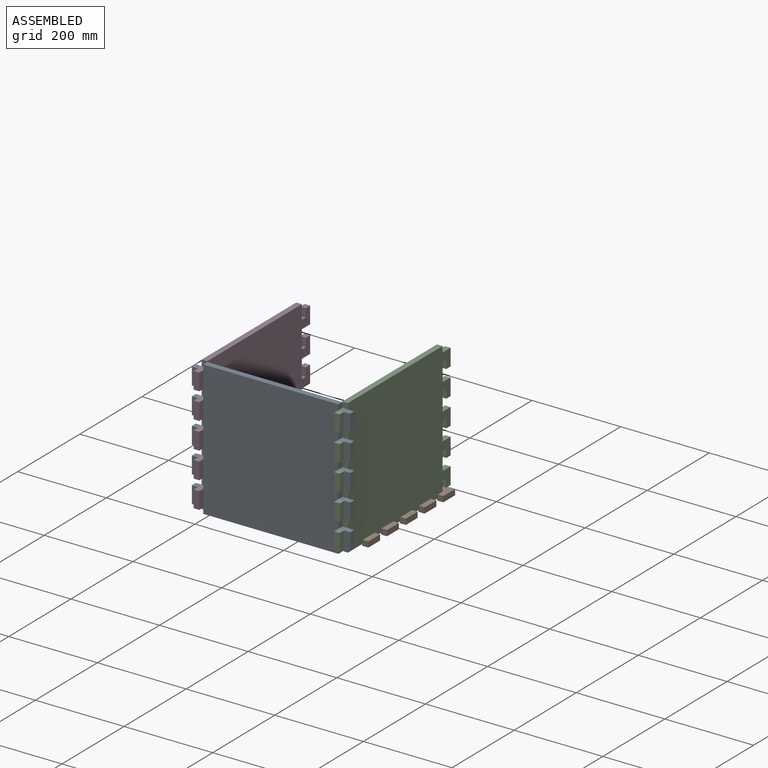
[diagram: assembled view]
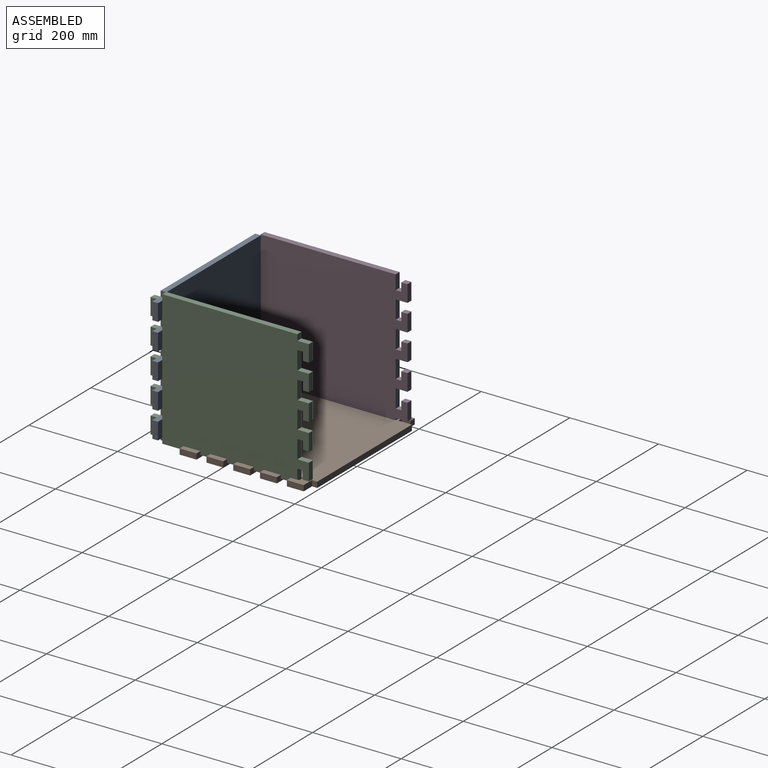
[diagram: assembled view, second angle]
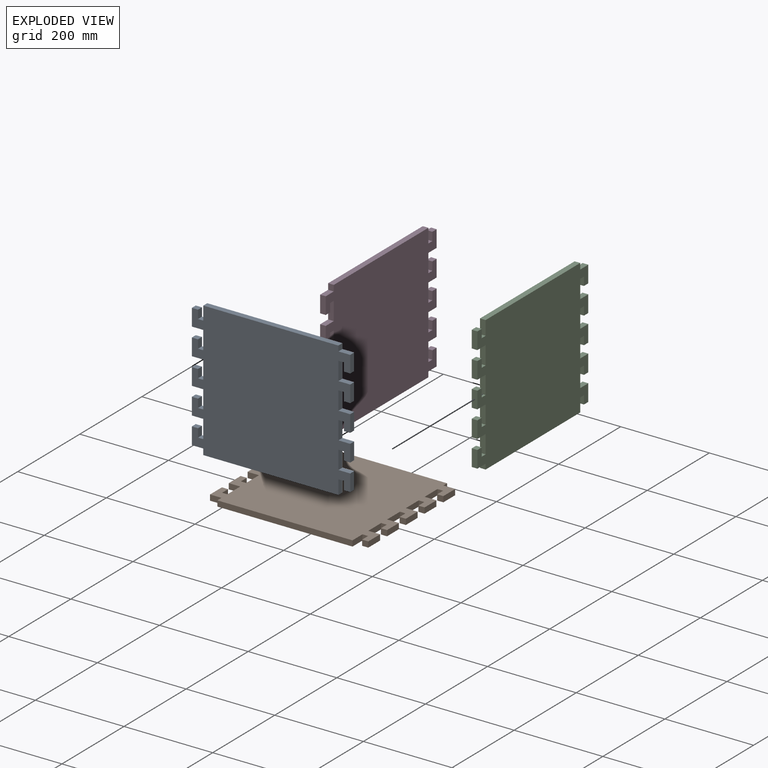
[diagram: exploded view]
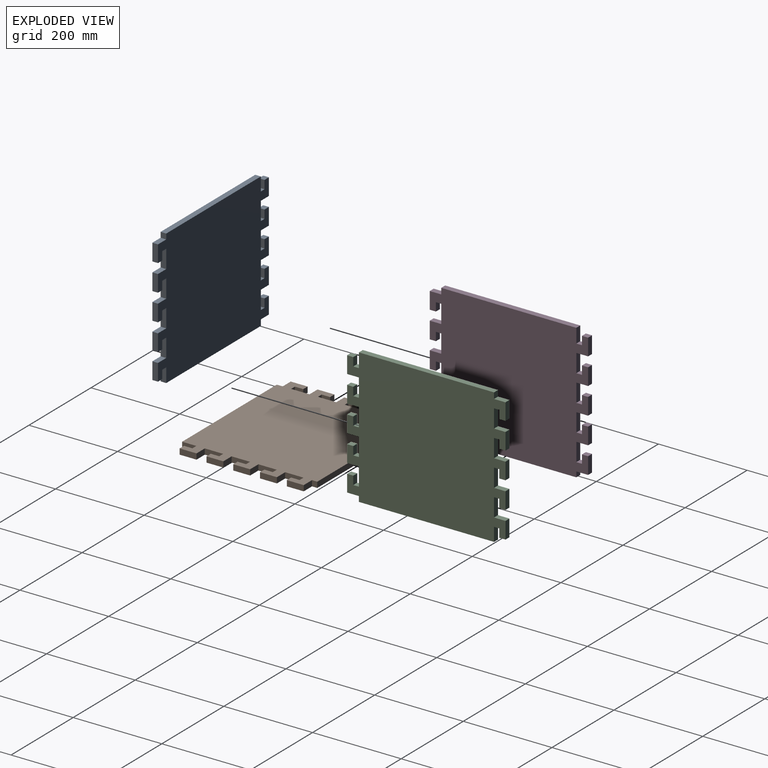
[diagram: exploded view, second angle]
ASSEMBLY  parts=4 mates=2
PART A: 66 faces, bbox 357.3x304.8x12.7 mm
  f0: plane 41.39x12.7mm, normal (-1,0,0), area 525.6mm2, adj f1,f63,f64,f65
  f1: plane 12.7x11.93mm, normal (0,1,0), area 151.6mm2, adj f0,f2,f64,f65
  f2: plane 19.05x12.7mm, normal (1,0,0), area 241.9mm2, adj f1,f3,f64,f65
  f3: plane 13.91x12.7mm, normal (0,1,0), area 176.7mm2, adj f2,f4,f64,f65
  f4: plane 38.1x12.7mm, normal (-1,0,0), area 483.9mm2, adj f3,f5,f64,f65
  f5: plane 25.85x12.7mm, normal (0,-1,0), area 328.3mm2, adj f4,f6,f64,f65
  f6: plane 41.39x12.7mm, normal (-1,0,0), area 525.6mm2, adj f5,f7,f64,f65
  f7: plane 12.7x11.93mm, normal (0,1,0), area 151.6mm2, adj f6,f8,f64,f65
  f8: plane 19.05x12.7mm, normal (1,0,0), area 241.9mm2, adj f7,f9,f64,f65
  f9: plane 13.91x12.7mm, normal (0,1,0), area 176.7mm2, adj f8,f10,f64,f65
  f10: plane 38.1x12.7mm, normal (-1,0,0), area 483.9mm2, adj f9,f11,f64,f65
  f11: plane 25.85x12.7mm, normal (0,-1,0), area 328.3mm2, adj f10,f12,f64,f65
  f12: plane 13.39x12.7mm, normal (-1,0,0), area 170mm2, adj f11,f13,f64,f65
  f13: plane 304.8x12.7mm, normal (0,-1,0), area 3871mm2, adj f12,f14,f64,f65
  f14: plane 32.05x12.7mm, normal (1,0,0), area 407.1mm2, adj f13,f15,f64,f65
  f15: plane 12.7x12.7mm, normal (0,-1,0), area 161.3mm2, adj f14,f16,f64,f65
  f16: plane 19.05x12.7mm, normal (-1,0,0), area 241.9mm2, adj f15,f17,f64,f65
  f17: plane 13.91x12.7mm, normal (0,-1,0), area 176.7mm2, adj f16,f18,f64,f65
  f18: plane 38.1x12.7mm, normal (1,0,0), area 483.9mm2, adj f17,f19,f64,f65
  f19: plane 26.61x12.7mm, normal (0,1,0), area 338mm2, adj f18,f20,f64,f65
  f20: plane 41.39x12.7mm, normal (1,0,0), area 525.6mm2, adj f19,f21,f64,f65
  f21: plane 12.7x12.7mm, normal (0,-1,0), area 161.3mm2, adj f20,f22,f64,f65
  f22: plane 19.05x12.7mm, normal (-1,0,0), area 241.9mm2, adj f21,f23,f64,f65
  f23: plane 13.91x12.7mm, normal (0,-1,0), area 176.7mm2, adj f22,f24,f64,f65
  f24: plane 38.1x12.7mm, normal (1,0,0), area 483.9mm2, adj f23,f25,f64,f65
  f25: plane 26.61x12.7mm, normal (0,1,0), area 338mm2, adj f24,f26,f64,f65
  f26: plane 41.39x12.7mm, normal (1,0,0), area 525.6mm2, adj f25,f27,f64,f65
  f27: plane 12.7x12.7mm, normal (0,-1,0), area 161.3mm2, adj f26,f28,f64,f65
  f28: plane 19.05x12.7mm, normal (-1,0,0), area 241.9mm2, adj f27,f29,f64,f65
  f29: plane 13.91x12.7mm, normal (0,-1,0), area 176.7mm2, adj f28,f30,f64,f65
  f30: plane 38.1x12.7mm, normal (1,0,0), area 483.9mm2, adj f29,f31,f64,f65
  f31: plane 26.61x12.7mm, normal (0,1,0), area 338mm2, adj f30,f32,f64,f65
  f32: plane 41.39x12.7mm, normal (1,0,0), area 525.6mm2, adj f31,f33,f64,f65
  f33: plane 12.7x12.7mm, normal (0,-1,0), area 161.3mm2, adj f32,f34,f64,f65
  f34: plane 19.05x12.7mm, normal (-1,0,0), area 241.9mm2, adj f33,f35,f64,f65
  f35: plane 13.91x12.7mm, normal (0,-1,0), area 176.7mm2, adj f34,f36,f64,f65
  f36: plane 38.1x12.7mm, normal (1,0,0), area 483.9mm2, adj f35,f37,f64,f65
  f37: plane 26.61x12.7mm, normal (0,1,0), area 338mm2, adj f36,f38,f64,f65
  f38: plane 41.39x12.7mm, normal (1,0,0), area 525.6mm2, adj f37,f39,f64,f65
  f39: plane 12.7x12.7mm, normal (0,-1,0), area 161.3mm2, adj f38,f40,f64,f65
  f40: plane 19.05x12.7mm, normal (-1,0,0), area 241.9mm2, adj f39,f41,f64,f65
  f41: plane 13.91x12.7mm, normal (0,-1,0), area 176.7mm2, adj f40,f42,f64,f65
  f42: plane 38.1x12.7mm, normal (1,0,0), area 483.9mm2, adj f41,f43,f64,f65
  f43: plane 26.61x12.7mm, normal (0,1,0), area 338mm2, adj f42,f44,f64,f65
  f44: plane 12.7x11.95mm, normal (1,0,0), area 151.8mm2, adj f43,f45,f64,f65
  f45: plane 304.8x12.7mm, normal (0,1,0), area 3871mm2, adj f44,f46,f64,f65
  f46: plane 30.62x12.7mm, normal (-1,0,0), area 388.9mm2, adj f45,f47,f64,f65
  f47: plane 12.7x11.93mm, normal (0,1,0), area 151.6mm2, adj f46,f48,f64,f65
  f48: plane 19.05x12.7mm, normal (1,0,0), area 241.9mm2, adj f47,f49,f64,f65
  f49: plane 13.91x12.7mm, normal (0,1,0), area 176.7mm2, adj f48,f50,f64,f65
  f50: plane 38.1x12.7mm, normal (-1,0,0), area 483.9mm2, adj f49,f51,f64,f65
  f51: plane 25.85x12.7mm, normal (0,-1,0), area 328.3mm2, adj f50,f52,f64,f65
  f52: plane 41.39x12.7mm, normal (-1,0,0), area 525.6mm2, adj f51,f53,f64,f65
  f53: plane 12.7x11.93mm, normal (0,1,0), area 151.6mm2, adj f52,f54,f64,f65
  f54: plane 19.05x12.7mm, normal (1,0,0), area 241.9mm2, adj f53,f55,f64,f65
  f55: plane 13.91x12.7mm, normal (0,1,0), area 176.7mm2, adj f54,f56,f64,f65
  f56: plane 38.1x12.7mm, normal (-1,0,0), area 483.9mm2, adj f55,f57,f64,f65
  f57: plane 25.85x12.7mm, normal (0,-1,0), area 328.3mm2, adj f56,f58,f64,f65
  f58: plane 41.39x12.7mm, normal (-1,0,0), area 525.6mm2, adj f57,f59,f64,f65
  f59: plane 12.7x11.93mm, normal (0,1,0), area 151.6mm2, adj f58,f60,f64,f65
  f60: plane 19.05x12.7mm, normal (1,0,0), area 241.9mm2, adj f59,f61,f64,f65
  f61: plane 13.91x12.7mm, normal (0,1,0), area 176.7mm2, adj f60,f62,f64,f65
  f62: plane 38.1x12.7mm, normal (-1,0,0), area 483.9mm2, adj f61,f63,f64,f65
  f63: plane 25.85x12.7mm, normal (0,-1,0), area 328.3mm2, adj f0,f62,f64,f65
  f64: plane 357.26x304.8mm, normal (0,0,1), area 100550.4mm2, adj f0,f1,f2,f3,f4,f5,f6,f7
  f65: plane 357.26x304.8mm, normal (0,0,-1), area 100550.4mm2, adj f0,f1,f2,f3,f4,f5,f6,f7
PART B: same geometry as A
PART C: same geometry as A
PART D: same geometry as A
PLACE A rot(axis=(1,0,0),90deg) t=(154.7,64.93,-50.32)mm
PLACE B t=(153.13,252.16,-206.44)mm
PLACE C rot(axis=(-0.58,0.58,-0.58),120deg) t=(307.1,217.33,-49.28)mm
PLACE D rot(axis=(-0.58,-0.58,0.58),120deg) t=(2.69,216.95,-48.51)mm
MATE fastened D.f47 <-> A.f7  axis (0,0,-1) through (-3.66,58.58,-170.29)mm
MATE fastened C.f15 <-> A.f39  axis (0,0,1) through (313.45,58.58,71.07)mm
